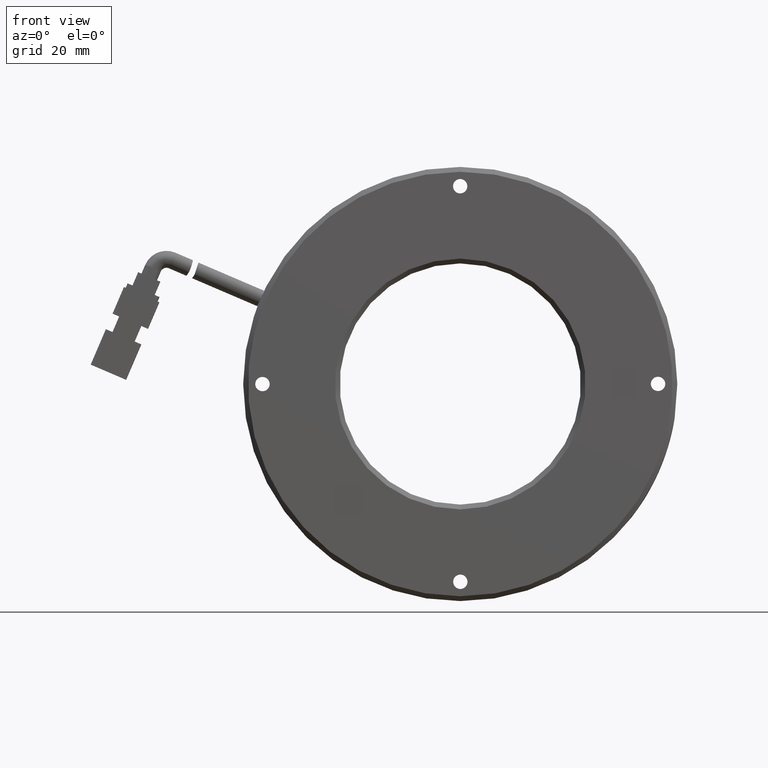
[diagram: clean part render]
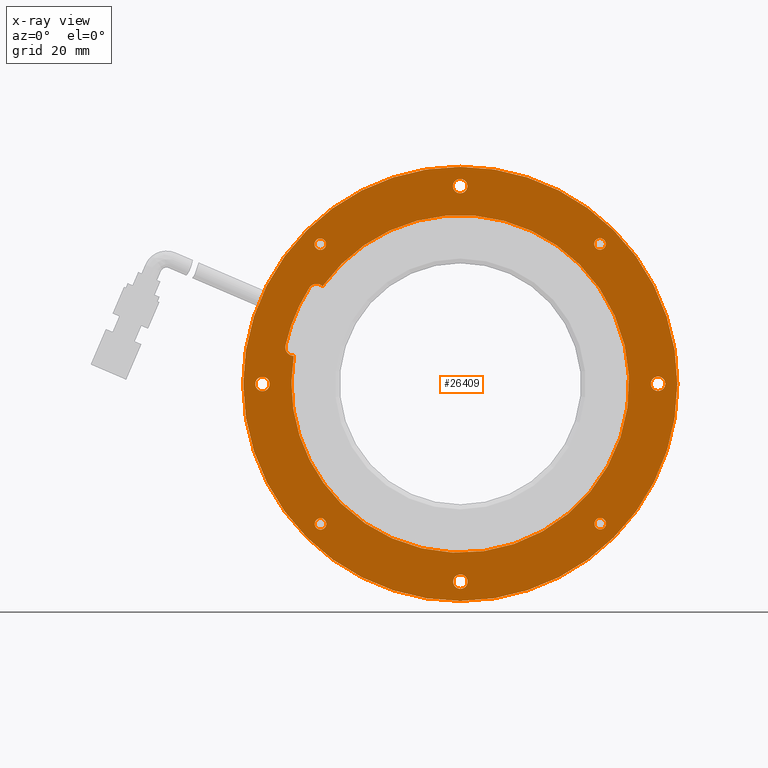
[diagram: x-ray — body ghosted, one internal face saturated and labeled with its STEP entity id]
A machine part, front view, then the same camera in x-ray: the body is ghosted and one INTERNAL B-rep face — a face not visible from any outside direction — is saturated and labeled: STEP entity #26409.
In plain terms, the highlighted planar face has unit normal (-0, 1, -0).
Its self-contained STEP definition (entity closure, byte-faithful):
#190 = CARTESIAN_POINT ( 'NONE',  ( 32.53889595117335900, 5.623552123552124200, 29.01526897348052700 ) ) ;
#291 = AXIS2_PLACEMENT_3D ( 'NONE', #33463, #14974, #36574 ) ;
#328 = CARTESIAN_POINT ( 'NONE',  ( 32.58669754490909300, 5.623552123552124200, -28.96746737974479700 ) ) ;
#346 = ORIENTED_EDGE ( 'NONE', *, *, #21944, .F. ) ;
#784 = EDGE_CURVE ( 'NONE', #16743, #24919, #12025, .T. ) ;
#949 = CARTESIAN_POINT ( 'NONE',  ( 3.571428571428565800, 5.623552123552121500, 0.0000000000000000000 ) ) ;
#1355 = ORIENTED_EDGE ( 'NONE', *, *, #23032, .T. ) ;
#1574 = DIRECTION ( 'NONE',  ( 0.7065235946279225800, 0.0000000000000000000, 0.7076894871580605700 ) ) ;
#1661 = ORIENTED_EDGE ( 'NONE', *, *, #8252, .F. ) ;
#1938 = DIRECTION ( 'NONE',  ( -0.7065235946279192500, 0.0000000000000000000, -0.7076894871580640100 ) ) ;
#2145 = CARTESIAN_POINT ( 'NONE',  ( 3.605229402510262900, 5.623552123552122400, -40.99998606711737600 ) ) ;
#2260 = CIRCLE ( 'NONE', #6625, 1.200000000000001300 ) ;
#2340 = VERTEX_POINT ( 'NONE', #35440 ) ;
#2436 = AXIS2_PLACEMENT_3D ( 'NONE', #4084, #25726, #7186 ) ;
#2655 = DIRECTION ( 'NONE',  ( 0.7065235946279216900, 9.637352644315595200E-017, 0.7076894871580614600 ) ) ;
#2891 = DIRECTION ( 'NONE',  ( -1.163897087407499700E-016, 1.000000000000000000, -2.939373556709199600E-017 ) ) ;
#3251 = VERTEX_POINT ( 'NONE', #31954 ) ;
#3285 = DIRECTION ( 'NONE',  ( 0.7065235946279211400, 0.0000000000000000000, 0.7076894871580620100 ) ) ;
#3415 = DIRECTION ( 'NONE',  ( 0.7065235946279211400, 0.0000000000000000000, 0.7076894871580620100 ) ) ;
#3575 = CARTESIAN_POINT ( 'NONE',  ( -36.36877210374692700, 5.623552123552118000, 1.027733399655528000 ) ) ;
#3814 = EDGE_CURVE ( 'NONE', #17820, #39415, #32558, .T. ) ;
#3937 = EDGE_LOOP ( 'NONE', ( #39048, #30775 ) ) ;
#4042 = DIRECTION ( 'NONE',  ( 0.7065235946279216900, 9.912705577010326800E-017, 0.7076894871580616800 ) ) ;
#4084 = CARTESIAN_POINT ( 'NONE',  ( -26.21591567580825500, 5.623552123552118900, 18.94212561188970100 ) ) ;
#4159 = CARTESIAN_POINT ( 'NONE',  ( -28.27459835068420100, 5.623552123552118900, 31.79356175825647700 ) ) ;
#4275 = AXIS2_PLACEMENT_3D ( 'NONE', #4159, #25791, #7259 ) ;
#4478 = FACE_BOUND ( 'NONE', #6898, .T. ) ;
#4884 = EDGE_CURVE ( 'NONE', #3251, #18478, #32336, .T. ) ;
#4890 = AXIS2_PLACEMENT_3D ( 'NONE', #2145, #38986, #1938 ) ;
#4979 = CARTESIAN_POINT ( 'NONE',  ( 33.38672426472686500, 5.623552123552124200, 29.86449635807019800 ) ) ;
#5335 = DIRECTION ( 'NONE',  ( -1.163897087407499700E-016, 1.000000000000000000, -2.939373556709199600E-017 ) ) ;
#5676 = EDGE_CURVE ( 'NONE', #17391, #35227, #20038, .T. ) ;
#5704 = ORIENTED_EDGE ( 'NONE', *, *, #4884, .F. ) ;
#5770 = DIRECTION ( 'NONE',  ( 1.163897087407499700E-016, -1.000000000000000000, 2.939373556709199000E-017 ) ) ;
#5986 = AXIS2_PLACEMENT_3D ( 'NONE', #33707, #15204, #36805 ) ;
#6497 = CARTESIAN_POINT ( 'NONE',  ( -32.65576092597669300, 5.623552123552117100, 8.000046319809095900 ) ) ;
#6625 = AXIS2_PLACEMENT_3D ( 'NONE', #31920, #13388, #35013 ) ;
#6898 = EDGE_LOOP ( 'NONE', ( #29403, #26903 ) ) ;
#7186 = DIRECTION ( 'NONE',  ( -0.7076894871580611300, 0.0000000000000000000, 0.7065235946279221400 ) ) ;
#7259 = DIRECTION ( 'NONE',  ( 0.7065235946279216900, 1.030337130463465200E-016, 0.7076894871580615700 ) ) ;
#7510 = EDGE_CURVE ( 'NONE', #12741, #2340, #34877, .T. ) ;
#7531 = DIRECTION ( 'NONE',  ( -1.163897087407499700E-016, 1.000000000000000000, -2.939373556709199600E-017 ) ) ;
#7854 = ORIENTED_EDGE ( 'NONE', *, *, #24355, .F. ) ;
#7927 = DIRECTION ( 'NONE',  ( -0.7065235946279235800, 0.0000000000000000000, -0.7076894871580596800 ) ) ;
#8064 = CARTESIAN_POINT ( 'NONE',  ( 44.57141463854593900, 5.623552123552126900, 0.03380083108184966900 ) ) ;
#8106 = VERTEX_POINT ( 'NONE', #27501 ) ;
#8252 = EDGE_CURVE ( 'NONE', #18478, #3251, #22155, .T. ) ;
#8284 = DIRECTION ( 'NONE',  ( -1.163897087407499700E-016, 1.000000000000000000, -2.939373556709199600E-017 ) ) ;
#8475 = ORIENTED_EDGE ( 'NONE', *, *, #26665, .F. ) ;
#8789 = VERTEX_POINT ( 'NONE', #20743 ) ;
#9004 = CIRCLE ( 'NONE', #32510, 1.200000000000001300 ) ;
#9275 = VERTEX_POINT ( 'NONE', #20000 ) ;
#9439 = AXIS2_PLACEMENT_3D ( 'NONE', #8064, #7531, #7927 ) ;
#9501 = AXIS2_PLACEMENT_3D ( 'NONE', #35008, #34867, #34515 ) ;
#9580 = CIRCLE ( 'NONE', #34587, 1.199999999999998800 ) ;
#9742 = EDGE_LOOP ( 'NONE', ( #14795, #15238 ) ) ;
#9866 = CARTESIAN_POINT ( 'NONE',  ( -24.59601208849845100, 5.623552123552118900, 29.81669476433446100 ) ) ;
#10028 = ORIENTED_EDGE ( 'NONE', *, *, #17578, .T. ) ;
#10101 = CIRCLE ( 'NONE', #23410, 35.00000000000000000 ) ;
#10173 = EDGE_LOOP ( 'NONE', ( #12246, #8475 ) ) ;
#10294 = EDGE_CURVE ( 'NONE', #36277, #38772, #17869, .T. ) ;
#10650 = CARTESIAN_POINT ( 'NONE',  ( -26.24386712186973000, 5.623552123552118900, -29.86449635807019500 ) ) ;
#10699 = AXIS2_PLACEMENT_3D ( 'NONE', #26796, #8284, #29919 ) ;
#11059 = CIRCLE ( 'NONE', #29766, 1.499999999999994400 ) ;
#11367 = EDGE_CURVE ( 'NONE', #11779, #12664, #26392, .T. ) ;
#11779 = VERTEX_POINT ( 'NONE', #20395 ) ;
#12025 = CIRCLE ( 'NONE', #35304, 35.00000000000000000 ) ;
#12222 = AXIS2_PLACEMENT_3D ( 'NONE', #35423, #16917, #38536 ) ;
#12244 = CARTESIAN_POINT ( 'NONE',  ( -26.21591567580825500, 5.623552123552118900, 18.94212561188970100 ) ) ;
#12246 = ORIENTED_EDGE ( 'NONE', *, *, #22742, .F. ) ;
#12518 = EDGE_CURVE ( 'NONE', #24477, #39693, #30092, .T. ) ;
#12600 = EDGE_LOOP ( 'NONE', ( #24889, #26380, #16883, #32506, #37746, #32501, #346 ) ) ;
#12664 = VERTEX_POINT ( 'NONE', #6497 ) ;
#12681 = DIRECTION ( 'NONE',  ( -1.163897087407499700E-016, 1.000000000000000000, -2.939373556709199600E-017 ) ) ;
#12683 = FACE_BOUND ( 'NONE', #3937, .T. ) ;
#12741 = VERTEX_POINT ( 'NONE', #37556 ) ;
#12893 = CARTESIAN_POINT ( 'NONE',  ( -25.44384040205195800, 5.623552123552118900, 28.96746737974478900 ) ) ;
#13388 = DIRECTION ( 'NONE',  ( 1.163897087407499700E-016, -1.000000000000000000, 2.939373556709199600E-017 ) ) ;
#13871 = AXIS2_PLACEMENT_3D ( 'NONE', #17827, #39488, #20934 ) ;
#14038 = CARTESIAN_POINT ( 'NONE',  ( 3.571428571428565800, 5.623552123552121500, 0.0000000000000000000 ) ) ;
#14277 = CARTESIAN_POINT ( 'NONE',  ( -26.29166871560546100, 5.623552123552118900, 28.11823999515511500 ) ) ;
#14795 = ORIENTED_EDGE ( 'NONE', *, *, #27437, .F. ) ;
#14974 = DIRECTION ( 'NONE',  ( -1.163897087407499700E-016, 1.000000000000000000, -2.939373556709199600E-017 ) ) ;
#15195 = CARTESIAN_POINT ( 'NONE',  ( -21.15689724054869500, 5.623552123552118000, -24.76913205053216100 ) ) ;
#15204 = DIRECTION ( 'NONE',  ( -1.163897087407499700E-016, 1.000000000000000000, -2.939373556709199600E-017 ) ) ;
#15238 = ORIENTED_EDGE ( 'NONE', *, *, #21949, .F. ) ;
#15300 = DIRECTION ( 'NONE',  ( 1.163897087407499700E-016, -1.000000000000000000, 2.939373556709199600E-017 ) ) ;
#15308 = EDGE_CURVE ( 'NONE', #39415, #17820, #34292, .T. ) ;
#15330 = CARTESIAN_POINT ( 'NONE',  ( 3.571428571428565800, 5.623552123552121500, 0.0000000000000000000 ) ) ;
#15376 = DIRECTION ( 'NONE',  ( -0.7076894871580611300, 0.0000000000000000000, 0.7065235946279221400 ) ) ;
#15412 = DIRECTION ( 'NONE',  ( 1.163897087407499700E-016, -1.000000000000000000, 2.939373556709199000E-017 ) ) ;
#15471 = EDGE_CURVE ( 'NONE', #38772, #16743, #10101, .T. ) ;
#16014 = DIRECTION ( 'NONE',  ( 0.7065235946279211400, 0.0000000000000000000, 0.7076894871580620100 ) ) ;
#16743 = VERTEX_POINT ( 'NONE', #23950 ) ;
#16883 = ORIENTED_EDGE ( 'NONE', *, *, #15471, .F. ) ;
#16912 = AXIS2_PLACEMENT_3D ( 'NONE', #33903, #15412, #37016 ) ;
#16917 = DIRECTION ( 'NONE',  ( -1.163897087407499700E-016, 1.000000000000000000, -2.939373556709199600E-017 ) ) ;
#17153 = DIRECTION ( 'NONE',  ( 0.7065235946279230200, 9.912705577010326800E-017, 0.7076894871580603500 ) ) ;
#17391 = VERTEX_POINT ( 'NONE', #27675 ) ;
#17578 = EDGE_CURVE ( 'NONE', #35227, #17391, #21364, .T. ) ;
#17820 = VERTEX_POINT ( 'NONE', #37177 ) ;
#17827 = CARTESIAN_POINT ( 'NONE',  ( 32.53889595117335900, 5.623552123552124200, 29.01526897348052700 ) ) ;
#17869 = CIRCLE ( 'NONE', #37312, 35.00000000000000000 ) ;
#17962 = ORIENTED_EDGE ( 'NONE', *, *, #5676, .T. ) ;
#18478 = VERTEX_POINT ( 'NONE', #35091 ) ;
#19136 = CIRCLE ( 'NONE', #39289, 1.499999999999990500 ) ;
#19388 = EDGE_CURVE ( 'NONE', #24919, #8789, #35035, .T. ) ;
#20000 = CARTESIAN_POINT ( 'NONE',  ( -38.48834288763067900, 5.623552123552118000, -1.095335061818644200 ) ) ;
#20037 = DIRECTION ( 'NONE',  ( 1.163897087407499700E-016, -1.000000000000000000, 2.939373556709199600E-017 ) ) ;
#20038 = CIRCLE ( 'NONE', #4890, 1.499999999999994400 ) ;
#20395 = CARTESIAN_POINT ( 'NONE',  ( -27.73481708218294300, 5.623552123552118900, 19.90801303685858400 ) ) ;
#20743 = CARTESIAN_POINT ( 'NONE',  ( -27.48975675269276700, 5.623552123552118900, 20.21386808221996000 ) ) ;
#20896 = FACE_BOUND ( 'NONE', #10173, .T. ) ;
#20907 = CARTESIAN_POINT ( 'NONE',  ( -24.54821049476272100, 5.623552123552118900, -28.16604158889084900 ) ) ;
#20934 = DIRECTION ( 'NONE',  ( 0.7065235946279211400, 0.0000000000000000000, 0.7076894871580620100 ) ) ;
#21184 = DIRECTION ( 'NONE',  ( -1.163897087407499700E-016, 1.000000000000000000, -2.939373556709199600E-017 ) ) ;
#21364 = CIRCLE ( 'NONE', #10699, 1.499999999999996700 ) ;
#21389 = CARTESIAN_POINT ( 'NONE',  ( 3.537627740346577500, 5.623552123552124200, 40.99998606711736900 ) ) ;
#21777 = DIRECTION ( 'NONE',  ( 1.163897087407499700E-016, -1.000000000000000000, 2.939373556709199600E-017 ) ) ;
#21796 = AXIS2_PLACEMENT_3D ( 'NONE', #39720, #21184, #2655 ) ;
#21858 = FACE_BOUND ( 'NONE', #12600, .T. ) ;
#21911 = DIRECTION ( 'NONE',  ( 1.163897087407499700E-016, -1.000000000000000000, 2.939373556709199600E-017 ) ) ;
#21914 = CIRCLE ( 'NONE', #291, 1.499999999999996700 ) ;
#21944 = EDGE_CURVE ( 'NONE', #8789, #11779, #34181, .T. ) ;
#21949 = EDGE_CURVE ( 'NONE', #25150, #27951, #2260, .T. ) ;
#22155 = CIRCLE ( 'NONE', #24205, 1.199999999999998800 ) ;
#22170 = AXIS2_PLACEMENT_3D ( 'NONE', #12244, #33867, #15376 ) ;
#22381 = EDGE_LOOP ( 'NONE', ( #1355, #22615 ) ) ;
#22459 = CARTESIAN_POINT ( 'NONE',  ( 31.69106763761985600, 5.623552123552124200, 28.16604158889085200 ) ) ;
#22546 = DIRECTION ( 'NONE',  ( 1.163897087407499700E-016, -1.000000000000000000, 2.939373556709199600E-017 ) ) ;
#22615 = ORIENTED_EDGE ( 'NONE', *, *, #39053, .T. ) ;
#22742 = EDGE_CURVE ( 'NONE', #25010, #30048, #9580, .T. ) ;
#22865 = AXIS2_PLACEMENT_3D ( 'NONE', #24271, #5770, #27376 ) ;
#23032 = EDGE_CURVE ( 'NONE', #9275, #33274, #19136, .T. ) ;
#23410 = AXIS2_PLACEMENT_3D ( 'NONE', #949, #22546, #4042 ) ;
#23847 = CARTESIAN_POINT ( 'NONE',  ( -37.42855749568880700, 5.623552123552118000, -0.03380083108155823600 ) ) ;
#23950 = CARTESIAN_POINT ( 'NONE',  ( 28.29975438340582600, 5.623552123552125100, 24.76913205053215700 ) ) ;
#24205 = AXIS2_PLACEMENT_3D ( 'NONE', #328, #21911, #3415 ) ;
#24271 = CARTESIAN_POINT ( 'NONE',  ( 3.571428571428565800, 5.623552123552121500, 0.0000000000000000000 ) ) ;
#24306 = EDGE_CURVE ( 'NONE', #2340, #12741, #32490, .T. ) ;
#24355 = EDGE_CURVE ( 'NONE', #39693, #24477, #24741, .T. ) ;
#24477 = VERTEX_POINT ( 'NONE', #22459 ) ;
#24531 = DIRECTION ( 'NONE',  ( -0.7065235946279192500, 0.0000000000000000000, -0.7076894871580640100 ) ) ;
#24730 = EDGE_LOOP ( 'NONE', ( #7854, #32708 ) ) ;
#24741 = CIRCLE ( 'NONE', #30845, 1.199999999999998800 ) ;
#24889 = ORIENTED_EDGE ( 'NONE', *, *, #19388, .F. ) ;
#24919 = VERTEX_POINT ( 'NONE', #34043 ) ;
#25010 = VERTEX_POINT ( 'NONE', #9866 ) ;
#25150 = VERTEX_POINT ( 'NONE', #10650 ) ;
#25482 = ORIENTED_EDGE ( 'NONE', *, *, #7510, .F. ) ;
#25726 = DIRECTION ( 'NONE',  ( 1.163897087407499700E-016, -1.000000000000000000, 2.939373556709199000E-017 ) ) ;
#25791 = DIRECTION ( 'NONE',  ( -1.163897087407499700E-016, 1.000000000000000000, -2.939373556709199600E-017 ) ) ;
#26380 = ORIENTED_EDGE ( 'NONE', *, *, #784, .F. ) ;
#26392 = CIRCLE ( 'NONE', #22865, 37.10000000000000900 ) ;
#26409 = ADVANCED_FACE ( 'NONE', ( #21858, #38311, #31102, #37343, #29159, #20896, #12683, #4478, #36403, #28194 ), #38060, .F. ) ;
#26665 = EDGE_CURVE ( 'NONE', #30048, #25010, #9004, .T. ) ;
#26796 = CARTESIAN_POINT ( 'NONE',  ( 3.605229402510262900, 5.623552123552122400, -40.99998606711737600 ) ) ;
#26903 = ORIENTED_EDGE ( 'NONE', *, *, #3814, .T. ) ;
#26941 = DIRECTION ( 'NONE',  ( -0.7065235946279214700, 0.0000000000000000000, -0.7076894871580617900 ) ) ;
#27376 = DIRECTION ( 'NONE',  ( -0.7076894871580615700, -7.013706776186549800E-017, 0.7065235946279216900 ) ) ;
#27437 = EDGE_CURVE ( 'NONE', #27951, #25150, #27697, .T. ) ;
#27479 = CIRCLE ( 'NONE', #16912, 1.800000000000001800 ) ;
#27501 = CARTESIAN_POINT ( 'NONE',  ( 4.597413132288457900, 5.623552123552124200, 42.06152029785445700 ) ) ;
#27675 = CARTESIAN_POINT ( 'NONE',  ( 4.665014794452143400, 5.623552123552122400, -39.93845183638028800 ) ) ;
#27697 = CIRCLE ( 'NONE', #27902, 1.199999999999998800 ) ;
#27902 = AXIS2_PLACEMENT_3D ( 'NONE', #33798, #15300, #36888 ) ;
#27951 = VERTEX_POINT ( 'NONE', #20907 ) ;
#28114 = CARTESIAN_POINT ( 'NONE',  ( 43.51162924660406600, 5.623552123552126900, -1.027733399655238700 ) ) ;
#28194 = FACE_BOUND ( 'NONE', #22381, .T. ) ;
#28835 = DIRECTION ( 'NONE',  ( 1.163897087407499700E-016, -1.000000000000000000, 2.939373556709199600E-017 ) ) ;
#28875 = CARTESIAN_POINT ( 'NONE',  ( 2.477842348404698300, 5.623552123552124200, 39.93845183638028100 ) ) ;
#28923 = CARTESIAN_POINT ( 'NONE',  ( -30.94255977346659500, 5.623552123552117100, 5.812452883976019900 ) ) ;
#29003 = CIRCLE ( 'NONE', #12222, 1.499999999999990500 ) ;
#29159 = FACE_BOUND ( 'NONE', #9742, .T. ) ;
#29403 = ORIENTED_EDGE ( 'NONE', *, *, #15308, .T. ) ;
#29673 = CARTESIAN_POINT ( 'NONE',  ( 2.545444010568383800, 5.623552123552122400, -42.06152029785446400 ) ) ;
#29766 = AXIS2_PLACEMENT_3D ( 'NONE', #21389, #2891, #24531 ) ;
#29919 = DIRECTION ( 'NONE',  ( -0.7065235946279202500, 0.0000000000000000000, -0.7076894871580629000 ) ) ;
#30048 = VERTEX_POINT ( 'NONE', #14277 ) ;
#30085 = EDGE_LOOP ( 'NONE', ( #5704, #1661 ) ) ;
#30092 = CIRCLE ( 'NONE', #13871, 1.199999999999998800 ) ;
#30239 = EDGE_CURVE ( 'NONE', #8106, #33308, #11059, .T. ) ;
#30775 = ORIENTED_EDGE ( 'NONE', *, *, #30239, .T. ) ;
#30845 = AXIS2_PLACEMENT_3D ( 'NONE', #190, #21777, #3285 ) ;
#31102 = FACE_BOUND ( 'NONE', #24730, .T. ) ;
#31224 = CARTESIAN_POINT ( 'NONE',  ( 44.57141463854593900, 5.623552123552126900, 0.03380083108184966900 ) ) ;
#31920 = CARTESIAN_POINT ( 'NONE',  ( -25.39603880831622700, 5.623552123552118900, -29.01526897348052400 ) ) ;
#31954 = CARTESIAN_POINT ( 'NONE',  ( 33.43452585846260000, 5.623552123552124200, -28.11823999515512200 ) ) ;
#32336 = CIRCLE ( 'NONE', #9501, 1.199999999999998800 ) ;
#32490 = CIRCLE ( 'NONE', #5986, 45.00000000000000000 ) ;
#32501 = ORIENTED_EDGE ( 'NONE', *, *, #11367, .F. ) ;
#32506 = ORIENTED_EDGE ( 'NONE', *, *, #10294, .F. ) ;
#32510 = AXIS2_PLACEMENT_3D ( 'NONE', #38595, #20037, #1574 ) ;
#32558 = CIRCLE ( 'NONE', #9439, 1.499999999999995600 ) ;
#32708 = ORIENTED_EDGE ( 'NONE', *, *, #12518, .F. ) ;
#33274 = VERTEX_POINT ( 'NONE', #3575 ) ;
#33308 = VERTEX_POINT ( 'NONE', #28875 ) ;
#33463 = CARTESIAN_POINT ( 'NONE',  ( 3.537627740346577500, 5.623552123552124200, 40.99998606711736900 ) ) ;
#33561 = DIRECTION ( 'NONE',  ( 0.7065235946279216900, 9.912705577010326800E-017, 0.7076894871580616800 ) ) ;
#33707 = CARTESIAN_POINT ( 'NONE',  ( 3.571428571428565800, 5.623552123552121500, 0.0000000000000000000 ) ) ;
#33798 = CARTESIAN_POINT ( 'NONE',  ( -25.39603880831622700, 5.623552123552118900, -29.01526897348052400 ) ) ;
#33867 = DIRECTION ( 'NONE',  ( 1.163897087407499700E-016, -1.000000000000000000, 2.939373556709199000E-017 ) ) ;
#33903 = CARTESIAN_POINT ( 'NONE',  ( -30.89810752718073800, 5.623552123552117100, 7.611903910761753900 ) ) ;
#33931 = EDGE_LOOP ( 'NONE', ( #10028, #17962 ) ) ;
#34043 = CARTESIAN_POINT ( 'NONE',  ( -24.97709561632381500, 5.623552123552118900, 20.24800648709194200 ) ) ;
#34181 = CIRCLE ( 'NONE', #2436, 1.800000000000000500 ) ;
#34292 = CIRCLE ( 'NONE', #34510, 1.499999999999994900 ) ;
#34316 = DIRECTION ( 'NONE',  ( -0.7065235946279239100, 0.0000000000000000000, -0.7076894871580593500 ) ) ;
#34510 = AXIS2_PLACEMENT_3D ( 'NONE', #31224, #12681, #34316 ) ;
#34512 = DIRECTION ( 'NONE',  ( 1.163897087407499700E-016, -1.000000000000000000, 2.939373556709199600E-017 ) ) ;
#34515 = DIRECTION ( 'NONE',  ( 0.7065235946279211400, 0.0000000000000000000, 0.7076894871580620100 ) ) ;
#34587 = AXIS2_PLACEMENT_3D ( 'NONE', #12893, #34512, #16014 ) ;
#34867 = DIRECTION ( 'NONE',  ( 1.163897087407499700E-016, -1.000000000000000000, 2.939373556709199600E-017 ) ) ;
#34877 = CIRCLE ( 'NONE', #21796, 45.00000000000000000 ) ;
#35008 = CARTESIAN_POINT ( 'NONE',  ( 32.58669754490909300, 5.623552123552124200, -28.96746737974479700 ) ) ;
#35013 = DIRECTION ( 'NONE',  ( 0.7065235946279225800, 0.0000000000000000000, 0.7076894871580605700 ) ) ;
#35035 = CIRCLE ( 'NONE', #22170, 1.800000000000000500 ) ;
#35091 = CARTESIAN_POINT ( 'NONE',  ( 31.73886923135559000, 5.623552123552124200, -29.81669476433446800 ) ) ;
#35227 = VERTEX_POINT ( 'NONE', #29673 ) ;
#35304 = AXIS2_PLACEMENT_3D ( 'NONE', #15330, #28835, #33561 ) ;
#35423 = CARTESIAN_POINT ( 'NONE',  ( -37.42855749568880700, 5.623552123552118000, -0.03380083108155823600 ) ) ;
#35440 = CARTESIAN_POINT ( 'NONE',  ( -28.22213318682790400, 5.623552123552117100, -31.84602692211277400 ) ) ;
#35658 = DIRECTION ( 'NONE',  ( 1.163897087407499700E-016, -1.000000000000000000, 2.939373556709199600E-017 ) ) ;
#36277 = VERTEX_POINT ( 'NONE', #28923 ) ;
#36403 = FACE_BOUND ( 'NONE', #33931, .T. ) ;
#36574 = DIRECTION ( 'NONE',  ( -0.7065235946279202500, 0.0000000000000000000, -0.7076894871580629000 ) ) ;
#36805 = DIRECTION ( 'NONE',  ( 0.7065235946279216900, 9.637352644315595200E-017, 0.7076894871580614600 ) ) ;
#36888 = DIRECTION ( 'NONE',  ( 0.7065235946279211400, 0.0000000000000000000, 0.7076894871580620100 ) ) ;
#37016 = DIRECTION ( 'NONE',  ( -0.7076894871580605700, 0.0000000000000000000, 0.7065235946279225800 ) ) ;
#37120 = ORIENTED_EDGE ( 'NONE', *, *, #24306, .F. ) ;
#37177 = CARTESIAN_POINT ( 'NONE',  ( 45.63120003048781800, 5.623552123552126900, 1.095335061818939500 ) ) ;
#37312 = AXIS2_PLACEMENT_3D ( 'NONE', #14038, #35658, #17153 ) ;
#37343 = FACE_BOUND ( 'NONE', #30085, .T. ) ;
#37556 = CARTESIAN_POINT ( 'NONE',  ( 35.36499032968504300, 5.623552123552126000, 31.84602692211276700 ) ) ;
#37746 = ORIENTED_EDGE ( 'NONE', *, *, #39372, .F. ) ;
#37753 = EDGE_LOOP ( 'NONE', ( #25482, #37120 ) ) ;
#38060 = PLANE ( 'NONE',  #4275 ) ;
#38214 = EDGE_CURVE ( 'NONE', #33308, #8106, #21914, .T. ) ;
#38311 = FACE_OUTER_BOUND ( 'NONE', #37753, .T. ) ;
#38536 = DIRECTION ( 'NONE',  ( -0.7065235946279214700, 0.0000000000000000000, -0.7076894871580617900 ) ) ;
#38595 = CARTESIAN_POINT ( 'NONE',  ( -25.44384040205195800, 5.623552123552118900, 28.96746737974478900 ) ) ;
#38772 = VERTEX_POINT ( 'NONE', #15195 ) ;
#38986 = DIRECTION ( 'NONE',  ( -1.163897087407499700E-016, 1.000000000000000000, -2.939373556709199600E-017 ) ) ;
#39048 = ORIENTED_EDGE ( 'NONE', *, *, #38214, .T. ) ;
#39053 = EDGE_CURVE ( 'NONE', #33274, #9275, #29003, .T. ) ;
#39289 = AXIS2_PLACEMENT_3D ( 'NONE', #23847, #5335, #26941 ) ;
#39372 = EDGE_CURVE ( 'NONE', #12664, #36277, #27479, .T. ) ;
#39415 = VERTEX_POINT ( 'NONE', #28114 ) ;
#39488 = DIRECTION ( 'NONE',  ( 1.163897087407499700E-016, -1.000000000000000000, 2.939373556709199600E-017 ) ) ;
#39693 = VERTEX_POINT ( 'NONE', #4979 ) ;
#39720 = CARTESIAN_POINT ( 'NONE',  ( 3.571428571428565800, 5.623552123552121500, 0.0000000000000000000 ) ) ;